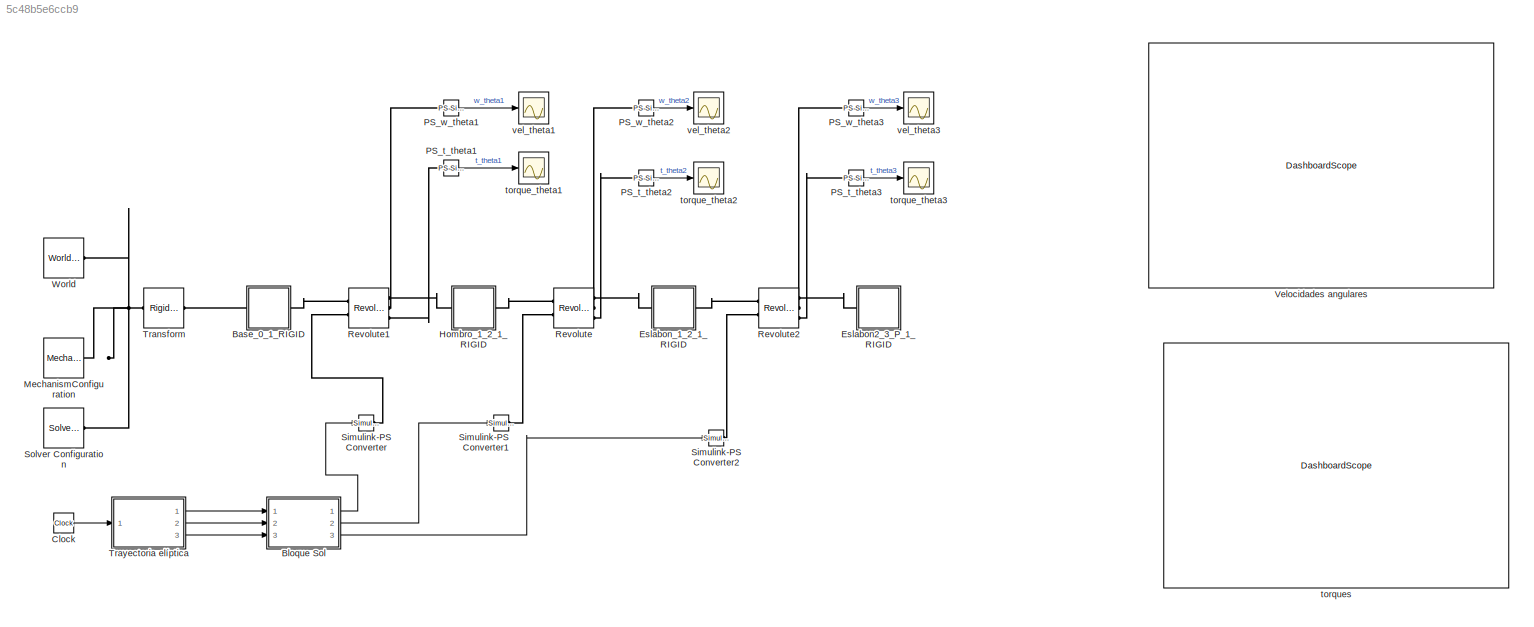
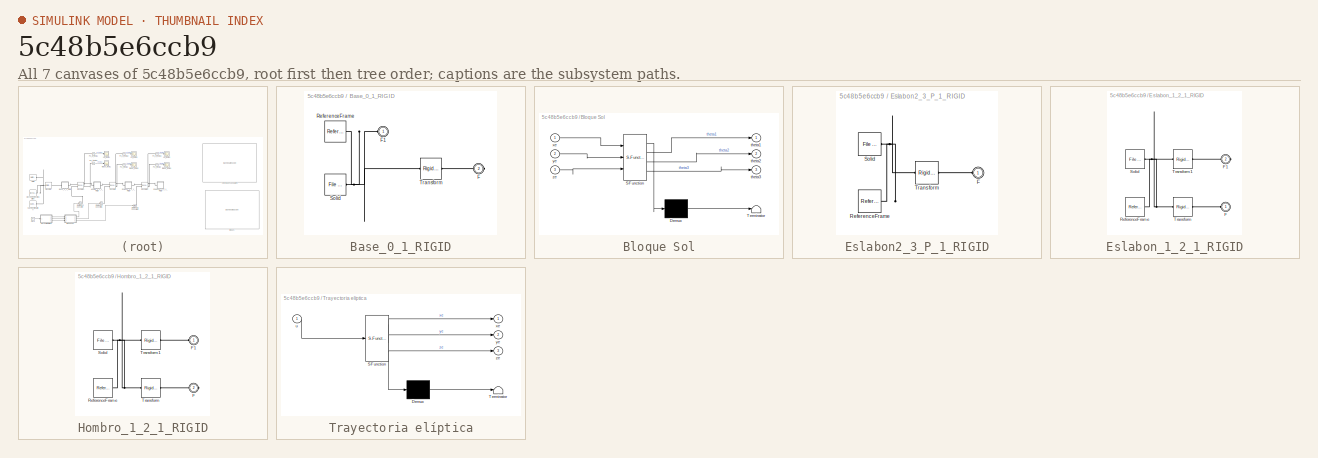
[diagram: thumbnail index - all 7 canvases of the model, root first then tree order]
MODEL slx_5c48b5e6ccb9
KIND model
CONFIG AbsTol = auto
CONFIG EnableMultiTasking = off
CONFIG FixedStep = auto
CONFIG MaxStep = auto
CONFIG MinStep = auto
CONFIG RelTol = 1e-3
CONFIG SampleTimeConstraint = Unconstrained
CONFIG SolverName = VariableStepAuto
CONFIG StartTime = 0.0
CONFIG StopTime = 10.0
WORKSPACE source: external: MATLAB File  (data not in archive)
BLOCK [SubSystem] Base_0_1_RIGID
  Ports = [0, 0, 0, 0, 0, 1, 1]
  RequestExecContextInheritance = off
BLOCK [PMIOPort] Base_0_1_RIGID/F
  Port = 2
  Side = Right
BLOCK [PMIOPort] Base_0_1_RIGID/F1
  Side = Left
BLOCK [Reference] Base_0_1_RIGID/ReferenceFrame  REF=sm_lib/Frames and
Transforms/Reference
Frame
  Ports = [0, 0, 0, 0, 0, 0, 1]
  SourceBlock = sm_lib/Frames and\nTransforms/Reference\nFrame
  SourceProductBaseCode = MS
  SourceType = Reference\nFrame
BLOCK [Reference] Base_0_1_RIGID/Solid  REF=sm_lib/Body Elements/File Solid
  Ports = [0, 0, 0, 0, 0, 0, 1]
  SourceBlock = sm_lib/Body Elements/File Solid
  SourceProductBaseCode = MS
  SourceType = File Solid
BLOCK [Reference] Base_0_1_RIGID/Transform  REF=sm_lib/Frames and
Transforms/Rigid
Transform
  Ports = [0, 0, 0, 0, 0, 1, 1]
  SourceBlock = sm_lib/Frames and\nTransforms/Rigid\nTransform
  SourceProductBaseCode = MS
  SourceType = Rigid\nTransform
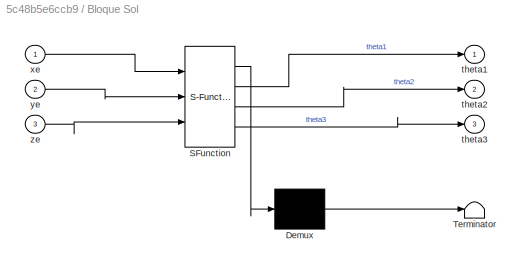
BLOCK [SubSystem] Bloque Sol
  ErrorFcn = Stateflow.Translate.translate
  PermitHierarchicalResolution = ExplicitOnly
  Ports = [3, 3]
  RequestExecContextInheritance = off
  SFBlockType = MATLAB Function
  TreatAsAtomicUnit = on
BLOCK [Demux] Bloque Sol/ Demux 
  Outputs = 1
  Ports = [1, 1]
BLOCK [S-Function] Bloque Sol/ SFunction 
  EnableBusSupport = on
  FunctionName = sf_sfun
  PortCounts = [3 4]
  Ports = [3, 4]
  SFcnIsStateOwnerBlock = off
  SFunctionDeploymentMode = off
  Tag = Stateflow S-Function 1
BLOCK [Terminator] Bloque Sol/ Terminator 
BLOCK [Outport] Bloque Sol/theta1
BLOCK [Outport] Bloque Sol/theta2
  Port = 2
BLOCK [Outport] Bloque Sol/theta3
  Port = 3
BLOCK [Inport] Bloque Sol/xe
BLOCK [Inport] Bloque Sol/ye
  Port = 2
BLOCK [Inport] Bloque Sol/ze
  Port = 3
BLOCK [Clock] Clock
BLOCK [SubSystem] Eslabon2_3_P_1_RIGID
  Ports = [0, 0, 0, 0, 0, 1]
  RequestExecContextInheritance = off
BLOCK [PMIOPort] Eslabon2_3_P_1_RIGID/F
  Side = Left
BLOCK [Reference] Eslabon2_3_P_1_RIGID/ReferenceFrame  REF=sm_lib/Frames and
Transforms/Reference
Frame
  Ports = [0, 0, 0, 0, 0, 0, 1]
  SourceBlock = sm_lib/Frames and\nTransforms/Reference\nFrame
  SourceProductBaseCode = MS
  SourceType = Reference\nFrame
BLOCK [Reference] Eslabon2_3_P_1_RIGID/Solid  REF=sm_lib/Body Elements/File Solid
  Ports = [0, 0, 0, 0, 0, 0, 1]
  SourceBlock = sm_lib/Body Elements/File Solid
  SourceProductBaseCode = MS
  SourceType = File Solid
BLOCK [Reference] Eslabon2_3_P_1_RIGID/Transform  REF=sm_lib/Frames and
Transforms/Rigid
Transform
  Ports = [0, 0, 0, 0, 0, 1, 1]
  SourceBlock = sm_lib/Frames and\nTransforms/Rigid\nTransform
  SourceProductBaseCode = MS
  SourceType = Rigid\nTransform
BLOCK [SubSystem] Eslabon_1_2_1_RIGID
  Ports = [0, 0, 0, 0, 0, 1, 1]
  RequestExecContextInheritance = off
BLOCK [PMIOPort] Eslabon_1_2_1_RIGID/F
  Side = Left
BLOCK [PMIOPort] Eslabon_1_2_1_RIGID/F1
  Port = 2
  Side = Right
BLOCK [Reference] Eslabon_1_2_1_RIGID/ReferenceFrame  REF=sm_lib/Frames and
Transforms/Reference
Frame
  Ports = [0, 0, 0, 0, 0, 0, 1]
  SourceBlock = sm_lib/Frames and\nTransforms/Reference\nFrame
  SourceProductBaseCode = MS
  SourceType = Reference\nFrame
BLOCK [Reference] Eslabon_1_2_1_RIGID/Solid  REF=sm_lib/Body Elements/File Solid
  Ports = [0, 0, 0, 0, 0, 0, 1]
  SourceBlock = sm_lib/Body Elements/File Solid
  SourceProductBaseCode = MS
  SourceType = File Solid
BLOCK [Reference] Eslabon_1_2_1_RIGID/Transform  REF=sm_lib/Frames and
Transforms/Rigid
Transform
  Ports = [0, 0, 0, 0, 0, 1, 1]
  SourceBlock = sm_lib/Frames and\nTransforms/Rigid\nTransform
  SourceProductBaseCode = MS
  SourceType = Rigid\nTransform
BLOCK [Reference] Eslabon_1_2_1_RIGID/Transform1  REF=sm_lib/Frames and
Transforms/Rigid
Transform
  Ports = [0, 0, 0, 0, 0, 1, 1]
  SourceBlock = sm_lib/Frames and\nTransforms/Rigid\nTransform
  SourceProductBaseCode = MS
  SourceType = Rigid\nTransform
BLOCK [SubSystem] Hombro_1_2_1_RIGID
  Ports = [0, 0, 0, 0, 0, 1, 1]
  RequestExecContextInheritance = off
BLOCK [PMIOPort] Hombro_1_2_1_RIGID/F
  Port = 2
  Side = Right
BLOCK [PMIOPort] Hombro_1_2_1_RIGID/F1
  Side = Left
BLOCK [Reference] Hombro_1_2_1_RIGID/ReferenceFrame  REF=sm_lib/Frames and
Transforms/Reference
Frame
  Ports = [0, 0, 0, 0, 0, 0, 1]
  SourceBlock = sm_lib/Frames and\nTransforms/Reference\nFrame
  SourceProductBaseCode = MS
  SourceType = Reference\nFrame
BLOCK [Reference] Hombro_1_2_1_RIGID/Solid  REF=sm_lib/Body Elements/File Solid
  Ports = [0, 0, 0, 0, 0, 0, 1]
  SourceBlock = sm_lib/Body Elements/File Solid
  SourceProductBaseCode = MS
  SourceType = File Solid
BLOCK [Reference] Hombro_1_2_1_RIGID/Transform  REF=sm_lib/Frames and
Transforms/Rigid
Transform
  Ports = [0, 0, 0, 0, 0, 1, 1]
  SourceBlock = sm_lib/Frames and\nTransforms/Rigid\nTransform
  SourceProductBaseCode = MS
  SourceType = Rigid\nTransform
BLOCK [Reference] Hombro_1_2_1_RIGID/Transform1  REF=sm_lib/Frames and
Transforms/Rigid
Transform
  Ports = [0, 0, 0, 0, 0, 1, 1]
  SourceBlock = sm_lib/Frames and\nTransforms/Rigid\nTransform
  SourceProductBaseCode = MS
  SourceType = Rigid\nTransform
BLOCK [Reference] MechanismConfiguration  REF=sm_lib/Utilities/Mechanism
Configuration
  Ports = [0, 0, 0, 0, 0, 0, 1]
  SourceBlock = sm_lib/Utilities/Mechanism\nConfiguration
  SourceProductBaseCode = MS
  SourceType = Mechanism\nConfiguration
BLOCK [Reference] PS_t_theta1  REF=nesl_utility/PS-Simulink
Converter
  Ports = [0, 1, 0, 0, 0, 1]
  SourceBlock = nesl_utility/PS-Simulink\nConverter
  SourceProductBaseCode = SS
  SourceType = PS-Simulink\nConverter
BLOCK [Reference] PS_t_theta2  REF=nesl_utility/PS-Simulink
Converter
  Ports = [0, 1, 0, 0, 0, 1]
  SourceBlock = nesl_utility/PS-Simulink\nConverter
  SourceProductBaseCode = SS
  SourceType = PS-Simulink\nConverter
BLOCK [Reference] PS_t_theta3  REF=nesl_utility/PS-Simulink
Converter
  Ports = [0, 1, 0, 0, 0, 1]
  SourceBlock = nesl_utility/PS-Simulink\nConverter
  SourceProductBaseCode = SS
  SourceType = PS-Simulink\nConverter
BLOCK [Reference] PS_w_theta1  REF=nesl_utility/PS-Simulink
Converter
  Ports = [0, 1, 0, 0, 0, 1]
  SourceBlock = nesl_utility/PS-Simulink\nConverter
  SourceProductBaseCode = SS
  SourceType = PS-Simulink\nConverter
BLOCK [Reference] PS_w_theta2  REF=nesl_utility/PS-Simulink
Converter
  Ports = [0, 1, 0, 0, 0, 1]
  SourceBlock = nesl_utility/PS-Simulink\nConverter
  SourceProductBaseCode = SS
  SourceType = PS-Simulink\nConverter
BLOCK [Reference] PS_w_theta3  REF=nesl_utility/PS-Simulink
Converter
  Ports = [0, 1, 0, 0, 0, 1]
  SourceBlock = nesl_utility/PS-Simulink\nConverter
  SourceProductBaseCode = SS
  SourceType = PS-Simulink\nConverter
BLOCK [Reference] Revolute  REF=sm_lib/Joints/Revolute Joint
  Ports = [0, 0, 0, 0, 0, 2, 3]
  SourceBlock = sm_lib/Joints/Revolute Joint
  SourceProductBaseCode = MS
  SourceType = Revolute Joint
BLOCK [Reference] Revolute1  REF=sm_lib/Joints/Revolute Joint
  Ports = [0, 0, 0, 0, 0, 2, 3]
  SourceBlock = sm_lib/Joints/Revolute Joint
  SourceProductBaseCode = MS
  SourceType = Revolute Joint
BLOCK [Reference] Revolute2  REF=sm_lib/Joints/Revolute Joint
  Ports = [0, 0, 0, 0, 0, 2, 3]
  SourceBlock = sm_lib/Joints/Revolute Joint
  SourceProductBaseCode = MS
  SourceType = Revolute Joint
BLOCK [Reference] Simulink-PS Converter  REF=nesl_utility/Simulink-PS
Converter
  Ports = [1, 0, 0, 0, 0, 0, 1]
  SourceBlock = nesl_utility/Simulink-PS\nConverter
  SourceProductBaseCode = SS
  SourceType = Simulink-PS\nConverter
BLOCK [Reference] Simulink-PS Converter1  REF=nesl_utility/Simulink-PS
Converter
  Ports = [1, 0, 0, 0, 0, 0, 1]
  SourceBlock = nesl_utility/Simulink-PS\nConverter
  SourceProductBaseCode = SS
  SourceType = Simulink-PS\nConverter
BLOCK [Reference] Simulink-PS Converter2  REF=nesl_utility/Simulink-PS
Converter
  Ports = [1, 0, 0, 0, 0, 0, 1]
  SourceBlock = nesl_utility/Simulink-PS\nConverter
  SourceProductBaseCode = SS
  SourceType = Simulink-PS\nConverter
BLOCK [Reference] Solver Configuration  REF=nesl_utility/Solver
Configuration
  Ports = [0, 0, 0, 0, 0, 0, 1]
  SourceBlock = nesl_utility/Solver\nConfiguration
  SourceProductBaseCode = SS
  SourceType = Solver\nConfiguration
BLOCK [Reference] Transform  REF=sm_lib/Frames and
Transforms/Rigid
Transform
  Ports = [0, 0, 0, 0, 0, 1, 1]
  SourceBlock = sm_lib/Frames and\nTransforms/Rigid\nTransform
  SourceProductBaseCode = MS
  SourceType = Rigid\nTransform
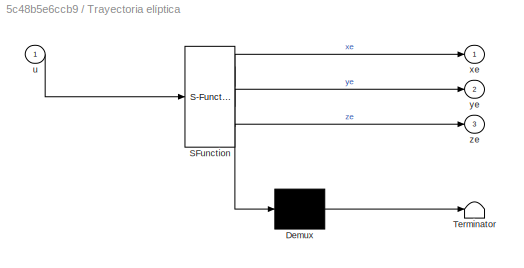
BLOCK [SubSystem] Trayectoria elíptica
  ErrorFcn = Stateflow.Translate.translate
  PermitHierarchicalResolution = ExplicitOnly
  Ports = [1, 3]
  RequestExecContextInheritance = off
  SFBlockType = MATLAB Function
  TreatAsAtomicUnit = on
BLOCK [Demux] Trayectoria elíptica/ Demux 
  Outputs = 1
  Ports = [1, 1]
BLOCK [S-Function] Trayectoria elíptica/ SFunction 
  EnableBusSupport = on
  FunctionName = sf_sfun
  PortCounts = [1 4]
  Ports = [1, 4]
  SFcnIsStateOwnerBlock = off
  SFunctionDeploymentMode = off
  Tag = Stateflow S-Function 2
BLOCK [Terminator] Trayectoria elíptica/ Terminator 
BLOCK [Inport] Trayectoria elíptica/u
BLOCK [Outport] Trayectoria elíptica/xe
BLOCK [Outport] Trayectoria elíptica/ye
  Port = 2
BLOCK [Outport] Trayectoria elíptica/ze
  Port = 3
BLOCK [DashboardScope] Velocidades angulares
BLOCK [Reference] World  REF=sm_lib/Frames and
Transforms/World Frame
  Ports = [0, 0, 0, 0, 0, 0, 1]
  SourceBlock = sm_lib/Frames and\nTransforms/World Frame
  SourceProductBaseCode = MS
  SourceType = World Frame
BLOCK [Scope] torque_theta1
  Floating = off
  NumInputPorts = 1
  Ports = [1]
  ScopeSpecificationString = Simulink.scopes.TimeScopeBlockCfg('CurrentConfiguration', extmgr.ConfigurationSet(extmgr.Configuration('Core','General UI',true),extmgr.Configuration('Core','Source UI',true),extmgr.Configuration('Sources','WiredSimulink',true,'DataLoggingVariableName','ScopeData3'),extmgr.Configuration('Visuals','Time Domain',true),extmgr.Configuration('Tools','Plot Navigation',true),extmgr.Configuration('Tools',...<+40ch>
BLOCK [Scope] torque_theta2
  Floating = off
  NumInputPorts = 1
  Ports = [1]
  ScopeSpecificationString = Simulink.scopes.TimeScopeBlockCfg('CurrentConfiguration', extmgr.ConfigurationSet(extmgr.Configuration('Core','General UI',true),extmgr.Configuration('Core','Source UI',true),extmgr.Configuration('Sources','WiredSimulink',true,'DataLoggingVariableName','ScopeData4'),extmgr.Configuration('Visuals','Time Domain',true),extmgr.Configuration('Tools','Plot Navigation',true),extmgr.Configuration('Tools',...<+40ch>
BLOCK [Scope] torque_theta3
  Floating = off
  NumInputPorts = 1
  Ports = [1]
  ScopeSpecificationString = Simulink.scopes.TimeScopeBlockCfg('CurrentConfiguration', extmgr.ConfigurationSet(extmgr.Configuration('Core','General UI',true),extmgr.Configuration('Core','Source UI',true),extmgr.Configuration('Sources','WiredSimulink',true,'DataLoggingVariableName','ScopeData5'),extmgr.Configuration('Visuals','Time Domain',true),extmgr.Configuration('Tools','Plot Navigation',true),extmgr.Configuration('Tools',...<+40ch>
BLOCK [DashboardScope] torques
BLOCK [Scope] vel_theta1
  Floating = off
  NumInputPorts = 1
  Ports = [1]
  ScopeSpecificationString = Simulink.scopes.TimeScopeBlockCfg('CurrentConfiguration', extmgr.ConfigurationSet(extmgr.Configuration('Core','General UI',true),extmgr.Configuration('Core','Source UI',true),extmgr.Configuration('Sources','WiredSimulink',true),extmgr.Configuration('Visuals','Time Domain',true,'SerializedDisplays',{struct('MinYLimReal','-1.26058','MaxYLimReal','1.26058','YLabelReal','','MinYLimMag','0.00000','MaxY...<+1341ch>
BLOCK [Scope] vel_theta2
  Floating = off
  NumInputPorts = 1
  Ports = [1]
  ScopeSpecificationString = Simulink.scopes.TimeScopeBlockCfg('CurrentConfiguration', extmgr.ConfigurationSet(extmgr.Configuration('Core','General UI',true),extmgr.Configuration('Core','Source UI',true),extmgr.Configuration('Sources','WiredSimulink',true,'DataLoggingVariableName','ScopeData1'),extmgr.Configuration('Visuals','Time Domain',true),extmgr.Configuration('Tools','Plot Navigation',true),extmgr.Configuration('Tools',...<+58ch>
BLOCK [Scope] vel_theta3
  Floating = off
  NumInputPorts = 1
  Ports = [1]
  ScopeSpecificationString = Simulink.scopes.TimeScopeBlockCfg('CurrentConfiguration', extmgr.ConfigurationSet(extmgr.Configuration('Core','General UI',true),extmgr.Configuration('Core','Source UI',true),extmgr.Configuration('Sources','WiredSimulink',true,'DataLoggingVariableName','ScopeData2'),extmgr.Configuration('Visuals','Time Domain',true),extmgr.Configuration('Tools','Plot Navigation',true),extmgr.Configuration('Tools',...<+58ch>
LINE Bloque Sol:1 -> Simulink-PS Converter:1
LINE Bloque Sol:2 -> Simulink-PS Converter1:1
LINE Bloque Sol:3 -> Simulink-PS Converter2:1
LINE Clock:1 -> Trayectoria elíptica:1
LINE PS_t_theta1:1 -> torque_theta1:1
LINE PS_t_theta2:1 -> torque_theta2:1
LINE PS_t_theta3:1 -> torque_theta3:1
LINE PS_w_theta1:1 -> vel_theta1:1
LINE PS_w_theta2:1 -> vel_theta2:1
LINE PS_w_theta3:1 -> vel_theta3:1
LINE Trayectoria elíptica:1 -> Bloque Sol:1
LINE Trayectoria elíptica:2 -> Bloque Sol:2
LINE Trayectoria elíptica:3 -> Bloque Sol:3
PNET net1: Base_0_1_RIGID/F1:RConn1 -- Base_0_1_RIGID/ReferenceFrame:RConn1 -- Base_0_1_RIGID/Solid:RConn1 -- Base_0_1_RIGID/Transform:LConn1
PLINE Base_0_1_RIGID/F:RConn1 -- Base_0_1_RIGID/Transform:RConn1
PLINE Base_0_1_RIGID:LConn1 -- Transform:RConn1
PLINE Base_0_1_RIGID:RConn1 -- Revolute1:LConn1
PLINE Eslabon2_3_P_1_RIGID/F:RConn1 -- Eslabon2_3_P_1_RIGID/Transform:RConn1
PNET net2: Eslabon2_3_P_1_RIGID/ReferenceFrame:RConn1 -- Eslabon2_3_P_1_RIGID/Solid:RConn1 -- Eslabon2_3_P_1_RIGID/Transform:LConn1
PLINE Eslabon2_3_P_1_RIGID:LConn1 -- Revolute2:RConn1
PLINE Eslabon_1_2_1_RIGID/F1:RConn1 -- Eslabon_1_2_1_RIGID/Transform1:RConn1
PLINE Eslabon_1_2_1_RIGID/F:RConn1 -- Eslabon_1_2_1_RIGID/Transform:RConn1
PNET net3: Eslabon_1_2_1_RIGID/ReferenceFrame:RConn1 -- Eslabon_1_2_1_RIGID/Solid:RConn1 -- Eslabon_1_2_1_RIGID/Transform1:LConn1 -- Eslabon_1_2_1_RIGID/Transform:LConn1
PLINE Eslabon_1_2_1_RIGID:LConn1 -- Revolute:RConn1
PLINE Eslabon_1_2_1_RIGID:RConn1 -- Revolute2:LConn1
PLINE Hombro_1_2_1_RIGID/F1:RConn1 -- Hombro_1_2_1_RIGID/Transform1:RConn1
PLINE Hombro_1_2_1_RIGID/F:RConn1 -- Hombro_1_2_1_RIGID/Transform:RConn1
PNET net4: Hombro_1_2_1_RIGID/ReferenceFrame:RConn1 -- Hombro_1_2_1_RIGID/Solid:RConn1 -- Hombro_1_2_1_RIGID/Transform1:LConn1 -- Hombro_1_2_1_RIGID/Transform:LConn1
PLINE Hombro_1_2_1_RIGID:LConn1 -- Revolute1:RConn1
PLINE Hombro_1_2_1_RIGID:RConn1 -- Revolute:LConn1
PNET net5: MechanismConfiguration:RConn1 -- Solver Configuration:RConn1 -- Transform:LConn1 -- World:RConn1
PLINE PS_t_theta1:LConn1 -- Revolute1:RConn3
PLINE PS_t_theta2:LConn1 -- Revolute:RConn3
PLINE PS_t_theta3:LConn1 -- Revolute2:RConn3
PLINE PS_w_theta1:LConn1 -- Revolute1:RConn2
PLINE PS_w_theta2:LConn1 -- Revolute:RConn2
PLINE PS_w_theta3:LConn1 -- Revolute2:RConn2
PLINE Revolute1:LConn2 -- Simulink-PS Converter:RConn1
PLINE Revolute2:LConn2 -- Simulink-PS Converter2:RConn1
PLINE Revolute:LConn2 -- Simulink-PS Converter1:RConn1
note: PNET lines group multi-terminal physical nets as a canonical sorted terminal list (undirected conserving connections); 2-terminal nets keep the pairwise PLINE form
CHART Bloque Sol states=1 transitions=1
  STATE_LABEL 'eML_blk_kernel()'
  STATE_LABEL 'SCRIPT:\nfunction [theta1, theta2, theta3] = fcn(xe, ye, ze)\n%Parámetros %%%%%%%%%%%\nL1 = 0.25;\nL2 = 0.2875;\n\np0_1 = [0;0;0.085];\np0_4 = [xe;ye;ze];\n\np1_4 = p0_4-p0_1;\nz1 = [0;0;1];\n\n%%%%Solución %%%%%%%%%%%%%%%%%\npsi = acos((dot(p1_4,z1))/(norm(p1_4)*norm(z1)));\n\nalpha = acos((L1^2+norm(p1_4)^2-L2^2)/(2*L1*norm(p1_4)));\n\nbeta = asin((norm(p1_4)*sin(alpha))/L2);\n\ntheta1 = -atan2(ye,xe);\ntheta2 = -(...<+36ch>'
CHART Trayectoria elíptica states=1 transitions=1
  STATE_LABEL 'eML_blk_kernel()'
  STATE_LABEL 'SCRIPT:\nfunction [xe, ye, ze] = fcn(u)\n\n% Tiempo de simulación\nt_total = 10;\n\n% Posición inicial\n\n\n%Centro del elipsoide\n\n% Trayectoria 1\n% x_c = 0.0;\n% y_c = 0.3;\n% z_c = 0.3;\n\n% Trayectoria 2\n% x_c = 0.3;\n% y_c = 0.0;\n% z_c = 0.3;\n\n% Trayectoria 3\nx_c = 0.1;\ny_c = 0.0;\nz_c = 0.3;\n\n% Posición final\nr_A = 0.1;\nr_B = 0.15;\n\n% t_p = 0:0.1:10;\n\n\n\n% Perfil de trayectoria o perfil de velocidades\n% Punt...<+204ch>'
CHART  states=0 transitions=0
CHART  states=0 transitions=0
